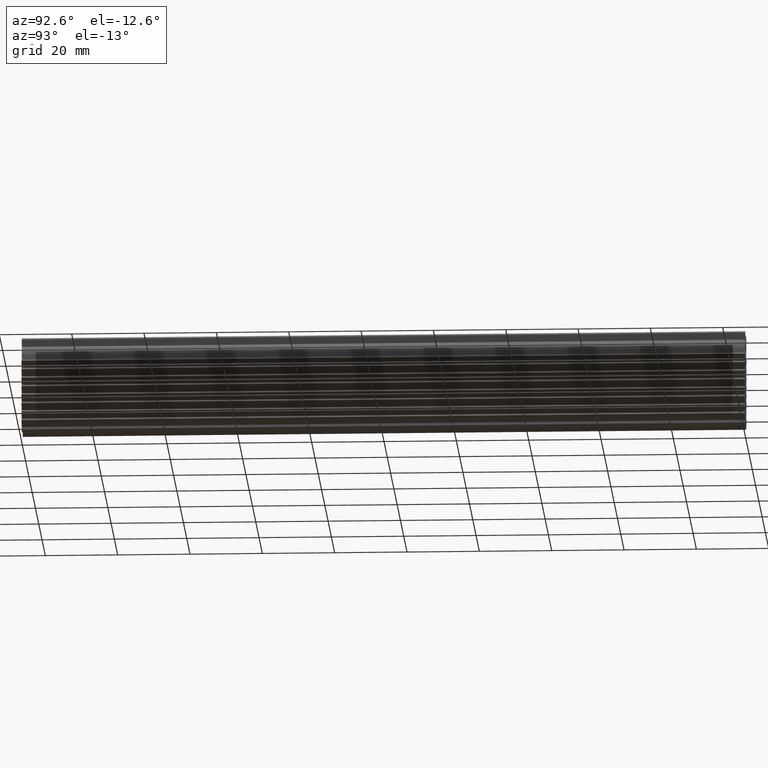
[diagram: clean part render]
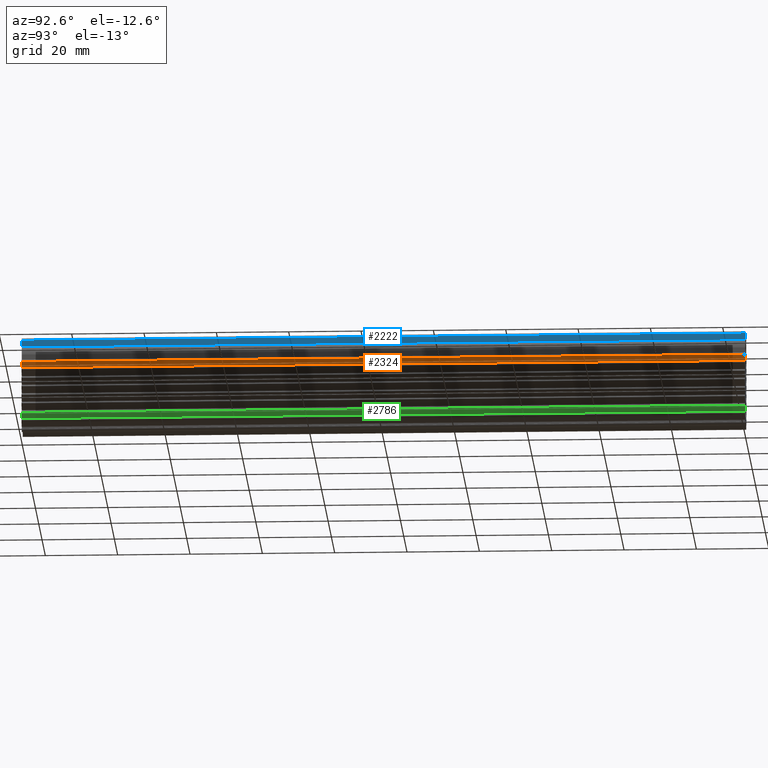
[diagram: same view with three faces highlighted in distinct colors, each labeled with its STEP entity id]
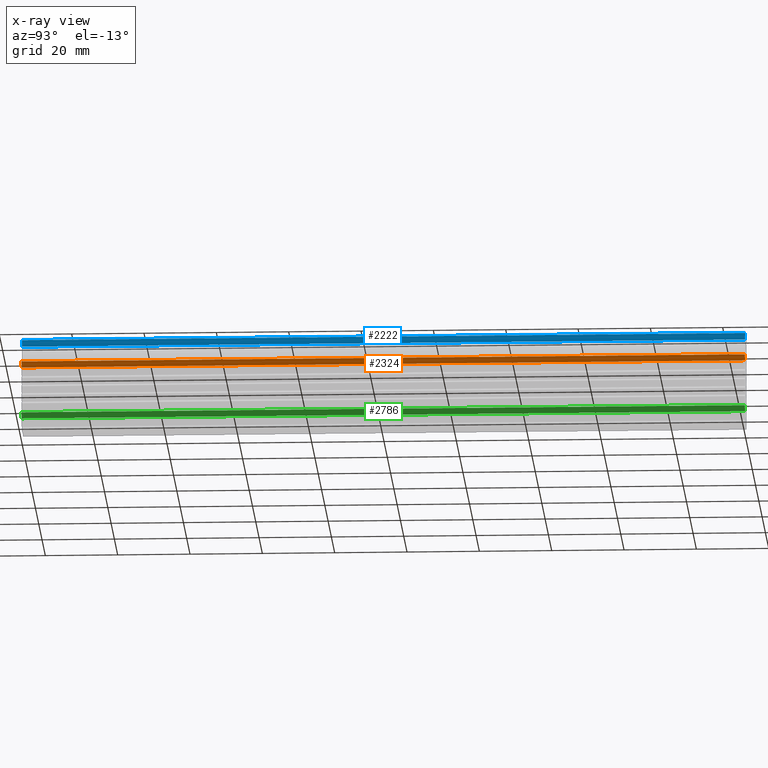
[diagram: x-ray of the same camera — body ghosted, the three highlighted faces saturated]
A machine part, auxiliary view with three faces highlighted in distinct colors.
The next image is the same camera in x-ray (body ghosted, the three faces saturated) — at least one of them is partly hidden behind the body in this view.
Their STEP definitions:

[orange] entity #2324 — the highlighted face is a freeform B-spline surface patch.
#739=CARTESIAN_POINT('',(3.750000000000000,0.0,-7.024264068708260));
#740=VERTEX_POINT('',#739);
#746=CARTESIAN_POINT('',(5.162132034355910,0.0,-5.612132034355810));
#747=VERTEX_POINT('',#746);
#748=CARTESIAN_POINT('',(3.750000000000000,0.0,-7.024264068708260));
#749=CARTESIAN_POINT('',(5.162132034355910,0.0,-5.612132034355810));
#750=QUASI_UNIFORM_CURVE('',1,(#748,#749),.UNSPECIFIED.,.F.,.U.);
#751=EDGE_CURVE('',#740,#747,#750,.T.);
#1041=CARTESIAN_POINT('',(5.162132034355910,200.0,-5.612132034355810));
#1042=VERTEX_POINT('',#1041);
#1058=CARTESIAN_POINT('',(3.750000000000000,200.0,-7.024264068708260));
#1059=VERTEX_POINT('',#1058);
#1060=CARTESIAN_POINT('',(3.750000000000000,200.0,-7.024264068708260));
#1061=CARTESIAN_POINT('',(5.162132034355910,200.0,-5.612132034355810));
#1062=QUASI_UNIFORM_CURVE('',1,(#1060,#1061),.UNSPECIFIED.,.F.,.U.);
#1063=EDGE_CURVE('',#1059,#1042,#1062,.T.);
#2299=CARTESIAN_POINT('',(5.162132034355910,200.0,-5.612132034355810));
#2300=CARTESIAN_POINT('',(5.162132034355910,0.0,-5.612132034355810));
#2301=QUASI_UNIFORM_CURVE('',1,(#2299,#2300),.UNSPECIFIED.,.F.,.U.);
#2302=EDGE_CURVE('',#1042,#747,#2301,.T.);
#2309=CARTESIAN_POINT('',(5.232668127738560,-9.989999612361194,-5.541595940973340));
#2310=CARTESIAN_POINT('',(3.679464070748132,-9.989999612361194,-7.094799997959962));
#2311=CARTESIAN_POINT('',(5.232668127738560,209.990004976779200,-5.541595940973340));
#2312=CARTESIAN_POINT('',(3.679464070748132,209.990004976779200,-7.094799997959962));
#2313=B_SPLINE_SURFACE_WITH_KNOTS('',1,1,((#2309,#2311),(#2310,#2312)),.UNSPECIFIED.,.F.,.F.,.U.,(2,2),(2,2),(0.0,2.196562242526086),(0.0,219.980004589140410),.UNSPECIFIED.);
#2314=ORIENTED_EDGE('',*,*,#751,.F.);
#2315=CARTESIAN_POINT('',(3.750000000000000,200.0,-7.024264068708260));
#2316=CARTESIAN_POINT('',(3.750000000000000,0.0,-7.024264068708260));
#2317=QUASI_UNIFORM_CURVE('',1,(#2315,#2316),.UNSPECIFIED.,.F.,.U.);
#2318=EDGE_CURVE('',#1059,#740,#2317,.T.);
#2319=ORIENTED_EDGE('',*,*,#2318,.F.);
#2320=ORIENTED_EDGE('',*,*,#1063,.T.);
#2321=ORIENTED_EDGE('',*,*,#2302,.T.);
#2322=EDGE_LOOP('',(#2314,#2319,#2320,#2321));
#2323=FACE_OUTER_BOUND('',#2322,.T.);
#2324=ADVANCED_FACE('',(#2323),#2313,.T.);

[blue] entity #2222 — the highlighted face is a freeform B-spline surface patch.
#784=CARTESIAN_POINT('',(3.014889893381595,0.0,-0.976281813958963));
#785=VERTEX_POINT('',#784);
#799=CARTESIAN_POINT('',(3.482962913144605,0.0,0.770590477448735));
#800=VERTEX_POINT('',#799);
#801=CARTESIAN_POINT('',(3.014889893381595,0.0,-0.976281813958963));
#802=CARTESIAN_POINT('',(3.482962913144605,0.0,0.770590477448735));
#803=QUASI_UNIFORM_CURVE('',1,(#801,#802),.UNSPECIFIED.,.F.,.U.);
#804=EDGE_CURVE('',#785,#800,#803,.T.);
#988=CARTESIAN_POINT('',(3.482962913144605,200.0,0.770590477448735));
#989=VERTEX_POINT('',#988);
#1005=CARTESIAN_POINT('',(3.014889893381595,200.0,-0.976281813958963));
#1006=VERTEX_POINT('',#1005);
#1007=CARTESIAN_POINT('',(3.014889893381595,200.0,-0.976281813958963));
#1008=CARTESIAN_POINT('',(3.482962913144605,200.0,0.770590477448735));
#1009=QUASI_UNIFORM_CURVE('',1,(#1007,#1008),.UNSPECIFIED.,.F.,.U.);
#1010=EDGE_CURVE('',#1006,#989,#1009,.T.);
#1923=CARTESIAN_POINT('',(3.482962913144605,200.0,0.770590477448735));
#1924=CARTESIAN_POINT('',(3.482962913144605,0.0,0.770590477448735));
#1925=QUASI_UNIFORM_CURVE('',1,(#1923,#1924),.UNSPECIFIED.,.F.,.U.);
#1926=EDGE_CURVE('',#989,#800,#1925,.T.);
#2207=CARTESIAN_POINT('',(3.506343159574551,-9.989999612361194,0.857846745018772));
#2208=CARTESIAN_POINT('',(2.991509634396976,-9.989999612361194,-1.063538128383773));
#2209=CARTESIAN_POINT('',(3.506343159574551,209.990004976779200,0.857846745018772));
#2210=CARTESIAN_POINT('',(2.991509634396976,209.990004976779200,-1.063538128383773));
#2211=B_SPLINE_SURFACE_WITH_KNOTS('',1,1,((#2207,#2209),(#2208,#2210)),.UNSPECIFIED.,.F.,.F.,.U.,(2,2),(2,2),(0.0,1.989163992833895),(0.0,219.980004589140410),.UNSPECIFIED.);
#2212=ORIENTED_EDGE('',*,*,#804,.F.);
#2213=CARTESIAN_POINT('',(3.014889893381595,200.0,-0.976281813958963));
#2214=CARTESIAN_POINT('',(3.014889893381595,0.0,-0.976281813958963));
#2215=QUASI_UNIFORM_CURVE('',1,(#2213,#2214),.UNSPECIFIED.,.F.,.U.);
#2216=EDGE_CURVE('',#1006,#785,#2215,.T.);
#2217=ORIENTED_EDGE('',*,*,#2216,.F.);
#2218=ORIENTED_EDGE('',*,*,#1010,.T.);
#2219=ORIENTED_EDGE('',*,*,#1926,.T.);
#2220=EDGE_LOOP('',(#2212,#2217,#2218,#2219));
#2221=FACE_OUTER_BOUND('',#2220,.T.);
#2222=ADVANCED_FACE('',(#2221),#2211,.T.);

[green] entity #2786 — the highlighted face is a freeform B-spline surface patch.
#511=CARTESIAN_POINT('',(3.750000000000000,0.0,-21.424264068708251));
#512=VERTEX_POINT('',#511);
#518=CARTESIAN_POINT('',(5.162132034355969,0.0,-20.012132034355901));
#519=VERTEX_POINT('',#518);
#520=CARTESIAN_POINT('',(3.750000000000000,0.0,-21.424264068708251));
#521=CARTESIAN_POINT('',(5.162132034355969,0.0,-20.012132034355901));
#522=QUASI_UNIFORM_CURVE('',1,(#520,#521),.UNSPECIFIED.,.F.,.U.);
#523=EDGE_CURVE('',#512,#519,#522,.T.);
#1269=CARTESIAN_POINT('',(5.162132034355969,200.0,-20.012132034355901));
#1270=VERTEX_POINT('',#1269);
#1286=CARTESIAN_POINT('',(3.750000000000000,200.0,-21.424264068708251));
#1287=VERTEX_POINT('',#1286);
#1288=CARTESIAN_POINT('',(3.750000000000000,200.0,-21.424264068708251));
#1289=CARTESIAN_POINT('',(5.162132034355969,200.0,-20.012132034355901));
#1290=QUASI_UNIFORM_CURVE('',1,(#1288,#1289),.UNSPECIFIED.,.F.,.U.);
#1291=EDGE_CURVE('',#1287,#1270,#1290,.T.);
#2761=CARTESIAN_POINT('',(5.162132034355969,200.0,-20.012132034355901));
#2762=CARTESIAN_POINT('',(5.162132034355969,0.0,-20.012132034355901));
#2763=QUASI_UNIFORM_CURVE('',1,(#2761,#2762),.UNSPECIFIED.,.F.,.U.);
#2764=EDGE_CURVE('',#1270,#519,#2763,.T.);
#2771=CARTESIAN_POINT('',(5.232667848074294,-9.989999612361183,-19.941596220637749));
#2772=CARTESIAN_POINT('',(3.679463555009453,-9.989999612361183,-21.494800513698600));
#2773=CARTESIAN_POINT('',(5.232667848074294,209.990004976779200,-19.941596220637749));
#2774=CARTESIAN_POINT('',(3.679463555009453,209.990004976779200,-21.494800513698600));
#2775=B_SPLINE_SURFACE_WITH_KNOTS('',1,1,((#2771,#2773),(#2772,#2774)),.UNSPECIFIED.,.F.,.F.,.U.,(2,2),(2,2),(0.0,2.196562576385590),(0.0,219.980004589140410),.UNSPECIFIED.);
#2776=ORIENTED_EDGE('',*,*,#523,.F.);
#2777=CARTESIAN_POINT('',(3.750000000000000,200.0,-21.424264068708251));
#2778=CARTESIAN_POINT('',(3.750000000000000,0.0,-21.424264068708251));
#2779=QUASI_UNIFORM_CURVE('',1,(#2777,#2778),.UNSPECIFIED.,.F.,.U.);
#2780=EDGE_CURVE('',#1287,#512,#2779,.T.);
#2781=ORIENTED_EDGE('',*,*,#2780,.F.);
#2782=ORIENTED_EDGE('',*,*,#1291,.T.);
#2783=ORIENTED_EDGE('',*,*,#2764,.T.);
#2784=EDGE_LOOP('',(#2776,#2781,#2782,#2783));
#2785=FACE_OUTER_BOUND('',#2784,.T.);
#2786=ADVANCED_FACE('',(#2785),#2775,.T.);